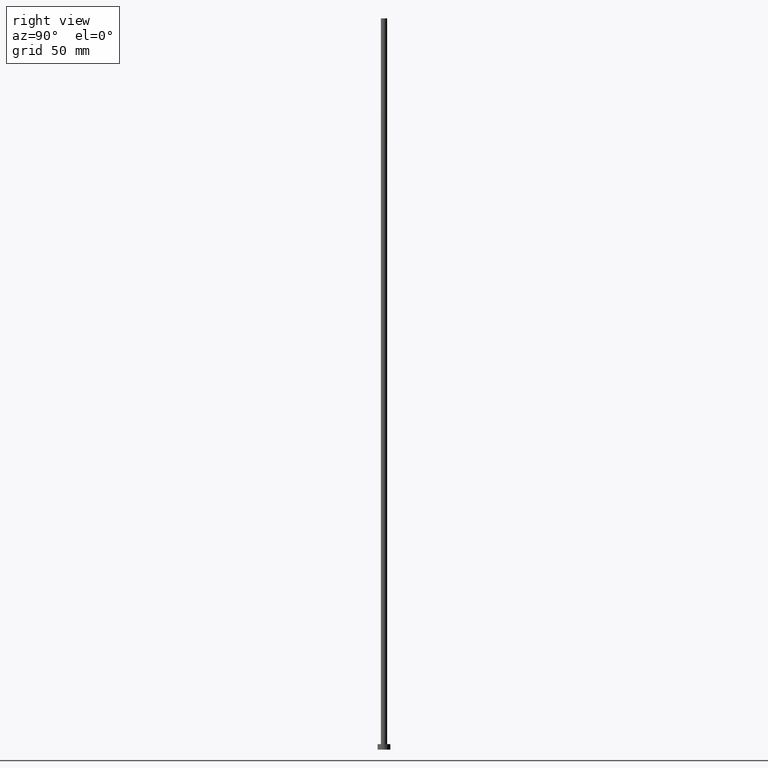
[diagram: clean part render]
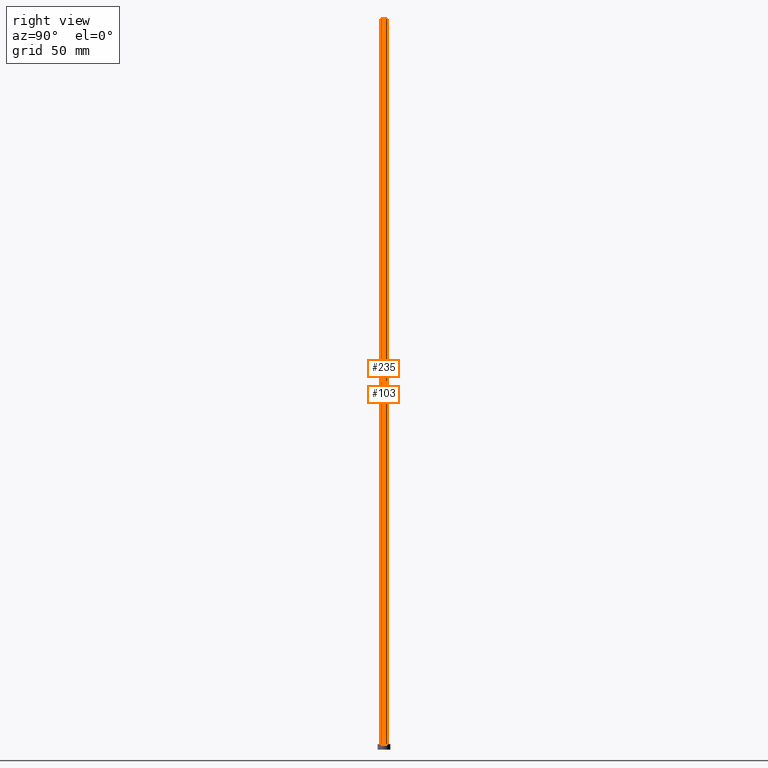
[diagram: same view with one multi-face feature highlighted, each face labeled with its STEP entity id]
A machine part, right view. The highlighted faces form ONE feature: a constant-radius fillet chain: 2 tangent blend faces with common blend radius 1.75 mm. The faces share edges in the B-rep.
Their STEP definitions:
[1] entity #235 (Cylinder):
#4 = DIRECTION ( 'NONE',  ( 0.000000000000000000, 0.000000000000000000, 1.000000000000000000 ) ) ;
#11 = CARTESIAN_POINT ( 'NONE',  ( 1.750000000000000000, 2.143131898507868297E-16, 3.000000000000000000 ) ) ;
#13 = CYLINDRICAL_SURFACE ( 'NONE', #231, 1.750000000000000000 ) ;
#22 = VERTEX_POINT ( 'NONE', #140 ) ;
#31 = CARTESIAN_POINT ( 'NONE',  ( -1.750000000000000000, 0.000000000000000000, 3.000000000000000000 ) ) ;
#34 = VECTOR ( 'NONE', #107, 1000.000000000000000 ) ;
#36 = LINE ( 'NONE', #145, #34 ) ;
#37 = CARTESIAN_POINT ( 'NONE',  ( 0.000000000000000000, 0.000000000000000000, 3.000000000000000000 ) ) ;
#59 = ORIENTED_EDGE ( 'NONE', *, *, #185, .T. ) ;
#62 = DIRECTION ( 'NONE',  ( -0.000000000000000000, -0.000000000000000000, -1.000000000000000000 ) ) ;
#80 = CARTESIAN_POINT ( 'NONE',  ( -1.750000000000000000, 0.000000000000000000, 400.0000000000000000 ) ) ;
#84 = CARTESIAN_POINT ( 'NONE',  ( 0.000000000000000000, 0.000000000000000000, 400.0000000000000000 ) ) ;
#90 = VERTEX_POINT ( 'NONE', #31 ) ;
#94 = ORIENTED_EDGE ( 'NONE', *, *, #151, .T. ) ;
#101 = AXIS2_PLACEMENT_3D ( 'NONE', #215, #4, #143 ) ;
#107 = DIRECTION ( 'NONE',  ( -0.000000000000000000, -0.000000000000000000, -1.000000000000000000 ) ) ;
#116 = AXIS2_PLACEMENT_3D ( 'NONE', #37, #228, #147 ) ;
#119 = ORIENTED_EDGE ( 'NONE', *, *, #242, .F. ) ;
#124 = EDGE_CURVE ( 'NONE', #161, #22, #182, .T. ) ;
#140 = CARTESIAN_POINT ( 'NONE',  ( 1.750000000000000000, 2.143131898507868297E-16, 400.0000000000000000 ) ) ;
#142 = ORIENTED_EDGE ( 'NONE', *, *, #124, .F. ) ;
#143 = DIRECTION ( 'NONE',  ( 1.000000000000000000, 0.000000000000000000, 0.000000000000000000 ) ) ;
#145 = CARTESIAN_POINT ( 'NONE',  ( -1.750000000000000000, 0.000000000000000000, 400.0000000000000000 ) ) ;
#146 = VECTOR ( 'NONE', #62, 1000.000000000000000 ) ;
#147 = DIRECTION ( 'NONE',  ( 1.000000000000000000, 0.000000000000000000, 0.000000000000000000 ) ) ;
#151 = EDGE_CURVE ( 'NONE', #161, #90, #36, .T. ) ;
#161 = VERTEX_POINT ( 'NONE', #80 ) ;
#166 = DIRECTION ( 'NONE',  ( -0.000000000000000000, -0.000000000000000000, -1.000000000000000000 ) ) ;
#178 = EDGE_LOOP ( 'NONE', ( #119, #142, #94, #59 ) ) ;
#182 = CIRCLE ( 'NONE', #101, 1.750000000000000000 ) ;
#185 = EDGE_CURVE ( 'NONE', #90, #238, #222, .T. ) ;
#202 = CARTESIAN_POINT ( 'NONE',  ( 1.750000000000000000, 2.143131898507868297E-16, 400.0000000000000000 ) ) ;
#215 = CARTESIAN_POINT ( 'NONE',  ( 0.000000000000000000, 0.000000000000000000, 400.0000000000000000 ) ) ;
#221 = DIRECTION ( 'NONE',  ( -1.000000000000000000, 0.000000000000000000, 0.000000000000000000 ) ) ;
#222 = CIRCLE ( 'NONE', #116, 1.750000000000000000 ) ;
#224 = FACE_OUTER_BOUND ( 'NONE', #178, .T. ) ;
#228 = DIRECTION ( 'NONE',  ( 0.000000000000000000, 0.000000000000000000, 1.000000000000000000 ) ) ;
#231 = AXIS2_PLACEMENT_3D ( 'NONE', #84, #166, #221 ) ;
#235 = ADVANCED_FACE ( 'NONE', ( #224 ), #13, .T. ) ;
#238 = VERTEX_POINT ( 'NONE', #11 ) ;
#242 = EDGE_CURVE ( 'NONE', #22, #238, #245, .T. ) ;
#245 = LINE ( 'NONE', #202, #146 ) ;
[2] entity #103 (Cylinder):
#2 = CIRCLE ( 'NONE', #28, 1.750000000000000000 ) ;
#6 = EDGE_CURVE ( 'NONE', #238, #90, #17, .T. ) ;
#11 = CARTESIAN_POINT ( 'NONE',  ( 1.750000000000000000, 2.143131898507868297E-16, 3.000000000000000000 ) ) ;
#17 = CIRCLE ( 'NONE', #52, 1.750000000000000000 ) ;
#22 = VERTEX_POINT ( 'NONE', #140 ) ;
#28 = AXIS2_PLACEMENT_3D ( 'NONE', #81, #243, #184 ) ;
#30 = CARTESIAN_POINT ( 'NONE',  ( 0.000000000000000000, 0.000000000000000000, 400.0000000000000000 ) ) ;
#31 = CARTESIAN_POINT ( 'NONE',  ( -1.750000000000000000, 0.000000000000000000, 3.000000000000000000 ) ) ;
#34 = VECTOR ( 'NONE', #107, 1000.000000000000000 ) ;
#36 = LINE ( 'NONE', #145, #34 ) ;
#40 = ORIENTED_EDGE ( 'NONE', *, *, #151, .F. ) ;
#45 = CARTESIAN_POINT ( 'NONE',  ( 0.000000000000000000, 0.000000000000000000, 3.000000000000000000 ) ) ;
#52 = AXIS2_PLACEMENT_3D ( 'NONE', #45, #160, #196 ) ;
#57 = FACE_OUTER_BOUND ( 'NONE', #71, .T. ) ;
#62 = DIRECTION ( 'NONE',  ( -0.000000000000000000, -0.000000000000000000, -1.000000000000000000 ) ) ;
#71 = EDGE_LOOP ( 'NONE', ( #253, #172, #170, #40 ) ) ;
#77 = DIRECTION ( 'NONE',  ( -1.000000000000000000, 0.000000000000000000, 0.000000000000000000 ) ) ;
#80 = CARTESIAN_POINT ( 'NONE',  ( -1.750000000000000000, 0.000000000000000000, 400.0000000000000000 ) ) ;
#81 = CARTESIAN_POINT ( 'NONE',  ( 0.000000000000000000, 0.000000000000000000, 400.0000000000000000 ) ) ;
#90 = VERTEX_POINT ( 'NONE', #31 ) ;
#91 = CYLINDRICAL_SURFACE ( 'NONE', #194, 1.750000000000000000 ) ;
#103 = ADVANCED_FACE ( 'NONE', ( #57 ), #91, .T. ) ;
#107 = DIRECTION ( 'NONE',  ( -0.000000000000000000, -0.000000000000000000, -1.000000000000000000 ) ) ;
#140 = CARTESIAN_POINT ( 'NONE',  ( 1.750000000000000000, 2.143131898507868297E-16, 400.0000000000000000 ) ) ;
#145 = CARTESIAN_POINT ( 'NONE',  ( -1.750000000000000000, 0.000000000000000000, 400.0000000000000000 ) ) ;
#146 = VECTOR ( 'NONE', #62, 1000.000000000000000 ) ;
#151 = EDGE_CURVE ( 'NONE', #161, #90, #36, .T. ) ;
#160 = DIRECTION ( 'NONE',  ( 0.000000000000000000, 0.000000000000000000, 1.000000000000000000 ) ) ;
#161 = VERTEX_POINT ( 'NONE', #80 ) ;
#170 = ORIENTED_EDGE ( 'NONE', *, *, #6, .T. ) ;
#172 = ORIENTED_EDGE ( 'NONE', *, *, #242, .T. ) ;
#176 = EDGE_CURVE ( 'NONE', #22, #161, #2, .T. ) ;
#184 = DIRECTION ( 'NONE',  ( 1.000000000000000000, 0.000000000000000000, 0.000000000000000000 ) ) ;
#194 = AXIS2_PLACEMENT_3D ( 'NONE', #30, #197, #77 ) ;
#196 = DIRECTION ( 'NONE',  ( 1.000000000000000000, 0.000000000000000000, 0.000000000000000000 ) ) ;
#197 = DIRECTION ( 'NONE',  ( -0.000000000000000000, -0.000000000000000000, -1.000000000000000000 ) ) ;
#202 = CARTESIAN_POINT ( 'NONE',  ( 1.750000000000000000, 2.143131898507868297E-16, 400.0000000000000000 ) ) ;
#238 = VERTEX_POINT ( 'NONE', #11 ) ;
#242 = EDGE_CURVE ( 'NONE', #22, #238, #245, .T. ) ;
#243 = DIRECTION ( 'NONE',  ( 0.000000000000000000, 0.000000000000000000, 1.000000000000000000 ) ) ;
#245 = LINE ( 'NONE', #202, #146 ) ;
#253 = ORIENTED_EDGE ( 'NONE', *, *, #176, .F. ) ;